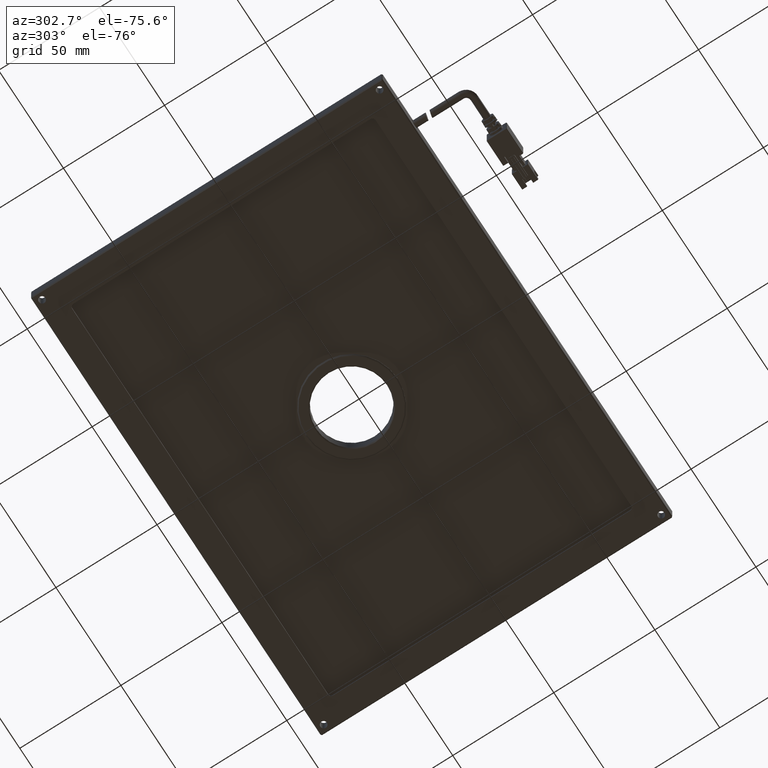
[diagram: clean part render]
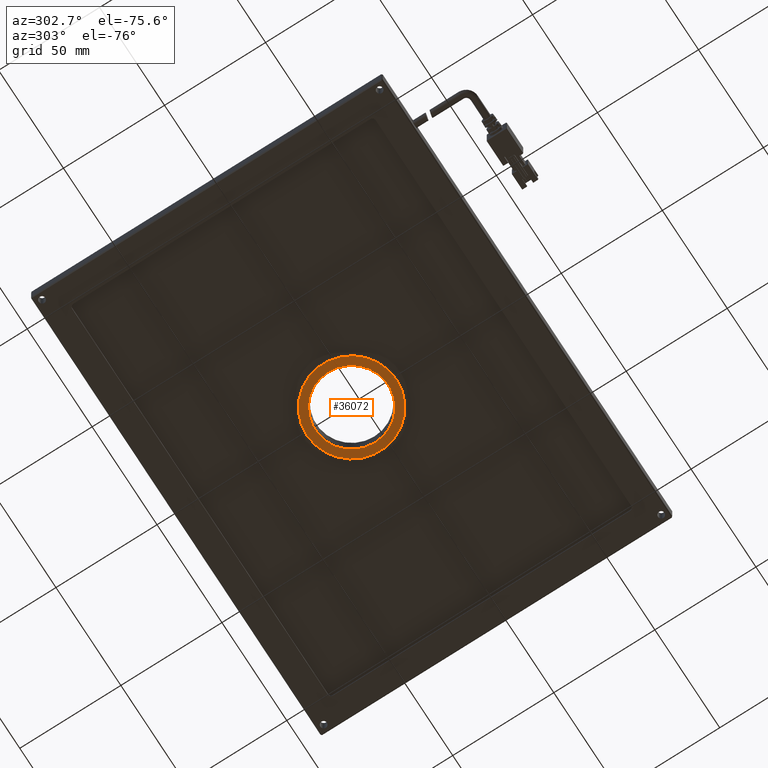
[diagram: same view with one face highlighted and labeled with its STEP entity id]
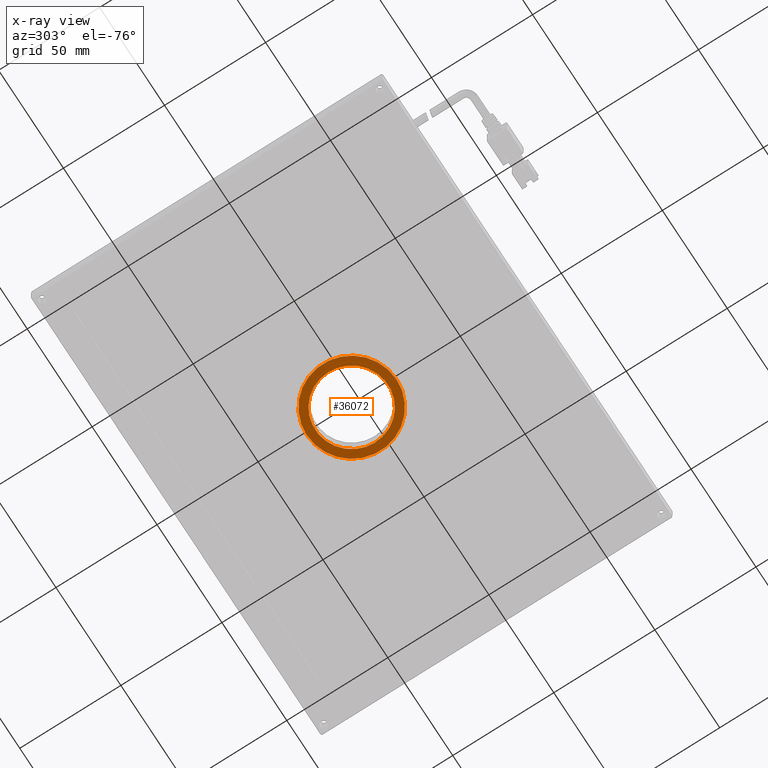
[diagram: x-ray of the same camera — body ghosted, the highlighted face saturated]
A machine part, auxiliary view. The second image highlights one B-rep face of the part: STEP entity #36072.
The next image is the same camera in x-ray: the body ghosted, the highlighted face saturated — about 0% of this face is hidden behind the body in this view.
In plain terms, the highlighted planar face has unit normal (0, 0, 1).
Its self-contained STEP definition (entity closure, byte-faithful):
#877 = AXIS2_PLACEMENT_3D ( 'NONE', #41612, #23065, #26419 ) ;
#982 = CARTESIAN_POINT ( 'NONE',  ( 2.322974683544309900, 5.192531645569604700, -3.750000000000003600 ) ) ;
#1303 = FACE_OUTER_BOUND ( 'NONE', #9928, .T. ) ;
#2174 = DIRECTION ( 'NONE',  ( 2.409338161078900400E-017, 0.0000000000000000000, -1.000000000000000000 ) ) ;
#2511 = CIRCLE ( 'NONE', #21759, 22.19999999999999600 ) ;
#4146 = DIRECTION ( 'NONE',  ( -1.000000000000000000, 0.0000000000000000000, -2.409338161078900000E-017 ) ) ;
#5379 = CARTESIAN_POINT ( 'NONE',  ( 2.322974683544309900, 5.192531645569604700, -3.750000000000003600 ) ) ;
#9571 = VERTEX_POINT ( 'NONE', #20053 ) ;
#9928 = EDGE_LOOP ( 'NONE', ( #42339, #29478 ) ) ;
#13788 = AXIS2_PLACEMENT_3D ( 'NONE', #982, #27878, #34974 ) ;
#16365 = CARTESIAN_POINT ( 'NONE',  ( 20.32297468354429900, 5.192531645569607300, -3.749999999999999600 ) ) ;
#17026 = CIRCLE ( 'NONE', #38105, 17.99999999999998900 ) ;
#17349 = EDGE_CURVE ( 'NONE', #43612, #32672, #20672, .T. ) ;
#17416 = CARTESIAN_POINT ( 'NONE',  ( 2.322974683544309900, 5.192531645569604700, -3.750000000000000000 ) ) ;
#20053 = CARTESIAN_POINT ( 'NONE',  ( 2.322974683544312600, 27.39253164556960100, -3.750000000000003600 ) ) ;
#20088 = ORIENTED_EDGE ( 'NONE', *, *, #43587, .F. ) ;
#20672 = CIRCLE ( 'NONE', #23856, 17.99999999999998900 ) ;
#21759 = AXIS2_PLACEMENT_3D ( 'NONE', #5379, #36311, #32277 ) ;
#23065 = DIRECTION ( 'NONE',  ( 0.0000000000000000000, 0.0000000000000000000, 1.000000000000000000 ) ) ;
#23290 = CARTESIAN_POINT ( 'NONE',  ( 2.322974683544309900, 5.192531645569604700, -3.750000000000000000 ) ) ;
#23856 = AXIS2_PLACEMENT_3D ( 'NONE', #17416, #2174, #28723 ) ;
#26419 = DIRECTION ( 'NONE',  ( 0.0000000000000000000, -1.000000000000000000, 0.0000000000000000000 ) ) ;
#27131 = DIRECTION ( 'NONE',  ( 2.409338161078900400E-017, 0.0000000000000000000, -1.000000000000000000 ) ) ;
#27878 = DIRECTION ( 'NONE',  ( 0.0000000000000000000, 0.0000000000000000000, 1.000000000000000000 ) ) ;
#28440 = VERTEX_POINT ( 'NONE', #48158 ) ;
#28723 = DIRECTION ( 'NONE',  ( -1.000000000000000000, 0.0000000000000000000, -2.409338161078900000E-017 ) ) ;
#29478 = ORIENTED_EDGE ( 'NONE', *, *, #40971, .F. ) ;
#31849 = EDGE_CURVE ( 'NONE', #28440, #9571, #47808, .T. ) ;
#32277 = DIRECTION ( 'NONE',  ( 0.0000000000000000000, -1.000000000000000000, 0.0000000000000000000 ) ) ;
#32672 = VERTEX_POINT ( 'NONE', #46700 ) ;
#34974 = DIRECTION ( 'NONE',  ( 0.0000000000000000000, -1.000000000000000000, 0.0000000000000000000 ) ) ;
#35618 = FACE_BOUND ( 'NONE', #43873, .T. ) ;
#36072 = ADVANCED_FACE ( 'NONE', ( #35618, #1303 ), #42107, .F. ) ;
#36311 = DIRECTION ( 'NONE',  ( 0.0000000000000000000, 0.0000000000000000000, 1.000000000000000000 ) ) ;
#36886 = ORIENTED_EDGE ( 'NONE', *, *, #17349, .F. ) ;
#38105 = AXIS2_PLACEMENT_3D ( 'NONE', #23290, #27131, #4146 ) ;
#40971 = EDGE_CURVE ( 'NONE', #9571, #28440, #2511, .T. ) ;
#41612 = CARTESIAN_POINT ( 'NONE',  ( -20.37702531645569300, 5.192531645569604700, -3.750000000000000000 ) ) ;
#42107 = PLANE ( 'NONE',  #877 ) ;
#42339 = ORIENTED_EDGE ( 'NONE', *, *, #31849, .F. ) ;
#43587 = EDGE_CURVE ( 'NONE', #32672, #43612, #17026, .T. ) ;
#43612 = VERTEX_POINT ( 'NONE', #16365 ) ;
#43873 = EDGE_LOOP ( 'NONE', ( #20088, #36886 ) ) ;
#46700 = CARTESIAN_POINT ( 'NONE',  ( -15.67702531645567800, 5.192531645569604700, -3.750000000000000400 ) ) ;
#47808 = CIRCLE ( 'NONE', #13788, 22.19999999999999600 ) ;
#48158 = CARTESIAN_POINT ( 'NONE',  ( 2.322974683544309900, -17.00746835443039400, -3.750000000000003600 ) ) ;